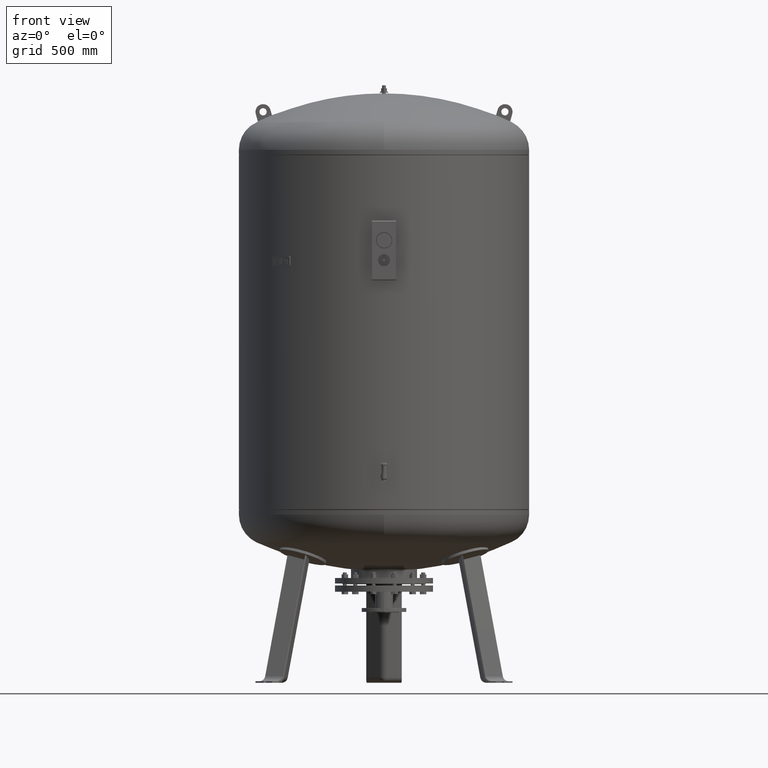
[diagram: clean part render]
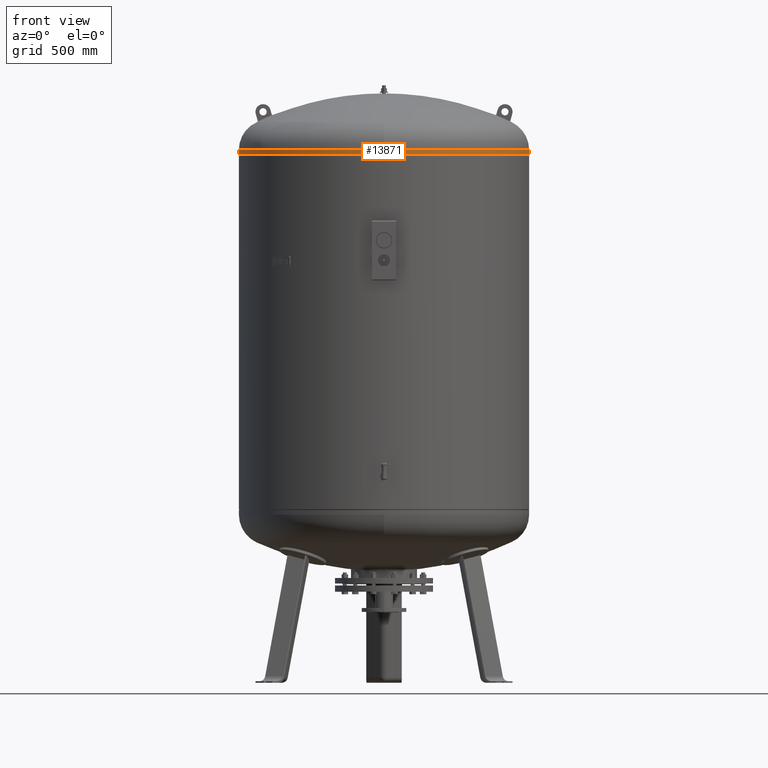
[diagram: same view with one face highlighted and labeled with its STEP entity id]
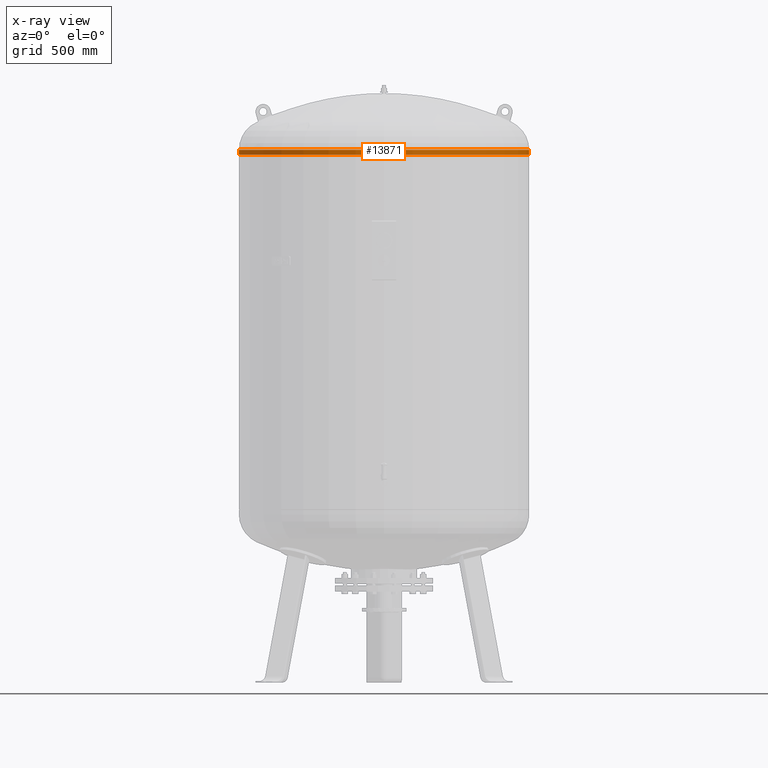
[diagram: x-ray of the same camera — body ghosted, the highlighted face saturated]
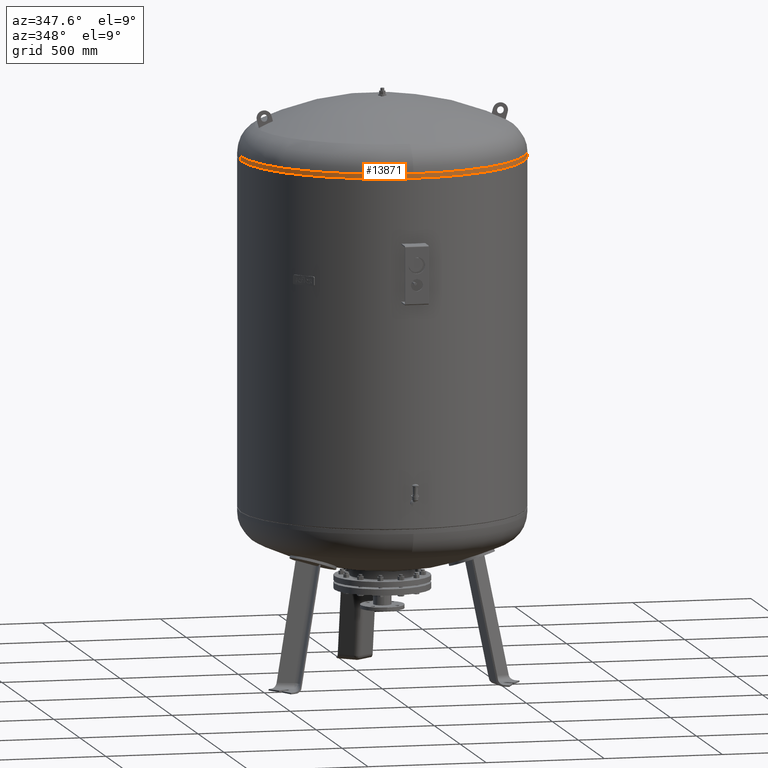
[diagram: same view with one face highlighted and labeled with its STEP entity id]
A machine part, front view. The second image highlights one B-rep face of the part: STEP entity #13871.
The next image is the same camera in x-ray: the body ghosted, the highlighted face saturated — about 0% of this face is hidden behind the body in this view.
A second angle (auxiliary view) of the same face is appended — the face is thin or edge-on in the first view.
In plain terms, the highlighted cylindrical surface (partial cylindrical patch) has radius 600 mm, axis along (0, -0, -1).
Its self-contained STEP definition (entity closure, byte-faithful):
#13212=CARTESIAN_POINT('',(600.000000000000110,-4.684274E-014,2184.0));
#13213=VERTEX_POINT('',#13212);
#13214=CARTESIAN_POINT('',(600.0,-4.336858E-014,2202.912457433727900));
#13215=VERTEX_POINT('',#13214);
#13216=CARTESIAN_POINT('',(600.000000000000110,-4.684274E-014,2184.0));
#13217=DIRECTION('',(0.0,0.0,1.0));
#13218=VECTOR('',#13217,18.912457433727923);
#13219=LINE('',#13216,#13218);
#13220=EDGE_CURVE('',#13213,#13215,#13219,.T.);
#13222=CARTESIAN_POINT('',(-599.999999999999890,2.663364E-014,2184.0));
#13223=VERTEX_POINT('',#13222);
#13231=CARTESIAN_POINT('',(-599.999999999999890,3.010780E-014,2202.912457433727500));
#13232=VERTEX_POINT('',#13231);
#13233=CARTESIAN_POINT('',(-599.999999999999890,2.663364E-014,2184.0));
#13234=DIRECTION('',(0.0,0.0,1.0));
#13235=VECTOR('',#13234,18.912457433727468);
#13236=LINE('',#13233,#13235);
#13237=EDGE_CURVE('',#13223,#13232,#13236,.T.);
#13263=CARTESIAN_POINT('',(4.214189E-014,-600.0,2202.912457433727500));
#13264=VERTEX_POINT('',#13263);
#13274=CARTESIAN_POINT('',(6.604942E-015,-4.336858E-014,2202.912457433727500));
#13275=DIRECTION('',(0.0,0.0,-1.0));
#13276=DIRECTION('',(1.0,0.0,0.0));
#13277=AXIS2_PLACEMENT_3D('',#13274,#13275,#13276);
#13278=CIRCLE('',#13277,600.0);
#13279=EDGE_CURVE('',#13215,#13264,#13278,.T.);
#13843=CARTESIAN_POINT('',(6.604942E-015,-4.336858E-014,2202.912457433727500));
#13844=DIRECTION('',(0.0,0.0,-1.0));
#13845=DIRECTION('',(1.0,0.0,0.0));
#13846=AXIS2_PLACEMENT_3D('',#13843,#13844,#13845);
#13847=CIRCLE('',#13846,600.0);
#13848=EDGE_CURVE('',#13264,#13232,#13847,.T.);
#13853=CARTESIAN_POINT('',(6.869496E-015,-4.510566E-014,2193.456228716863700));
#13854=DIRECTION('',(2.797667E-017,-1.836970E-016,-1.0));
#13855=DIRECTION('',(1.0,0.0,0.0));
#13856=AXIS2_PLACEMENT_3D('',#13853,#13854,#13855);
#13857=CYLINDRICAL_SURFACE('',#13856,599.999999999999890);
#13858=ORIENTED_EDGE('',*,*,#13220,.T.);
#13859=ORIENTED_EDGE('',*,*,#13279,.T.);
#13860=ORIENTED_EDGE('',*,*,#13848,.T.);
#13861=ORIENTED_EDGE('',*,*,#13237,.F.);
#13862=CARTESIAN_POINT('',(7.134050E-015,-4.684274E-014,2184.0));
#13863=DIRECTION('',(0.0,0.0,-1.0));
#13864=DIRECTION('',(1.0,0.0,0.0));
#13865=AXIS2_PLACEMENT_3D('',#13862,#13863,#13864);
#13866=CIRCLE('',#13865,600.0);
#13867=EDGE_CURVE('',#13213,#13223,#13866,.T.);
#13868=ORIENTED_EDGE('',*,*,#13867,.F.);
#13869=EDGE_LOOP('',(#13858,#13859,#13860,#13861,#13868));
#13870=FACE_OUTER_BOUND('',#13869,.T.);
#13871=ADVANCED_FACE('',(#13870),#13857,.T.);